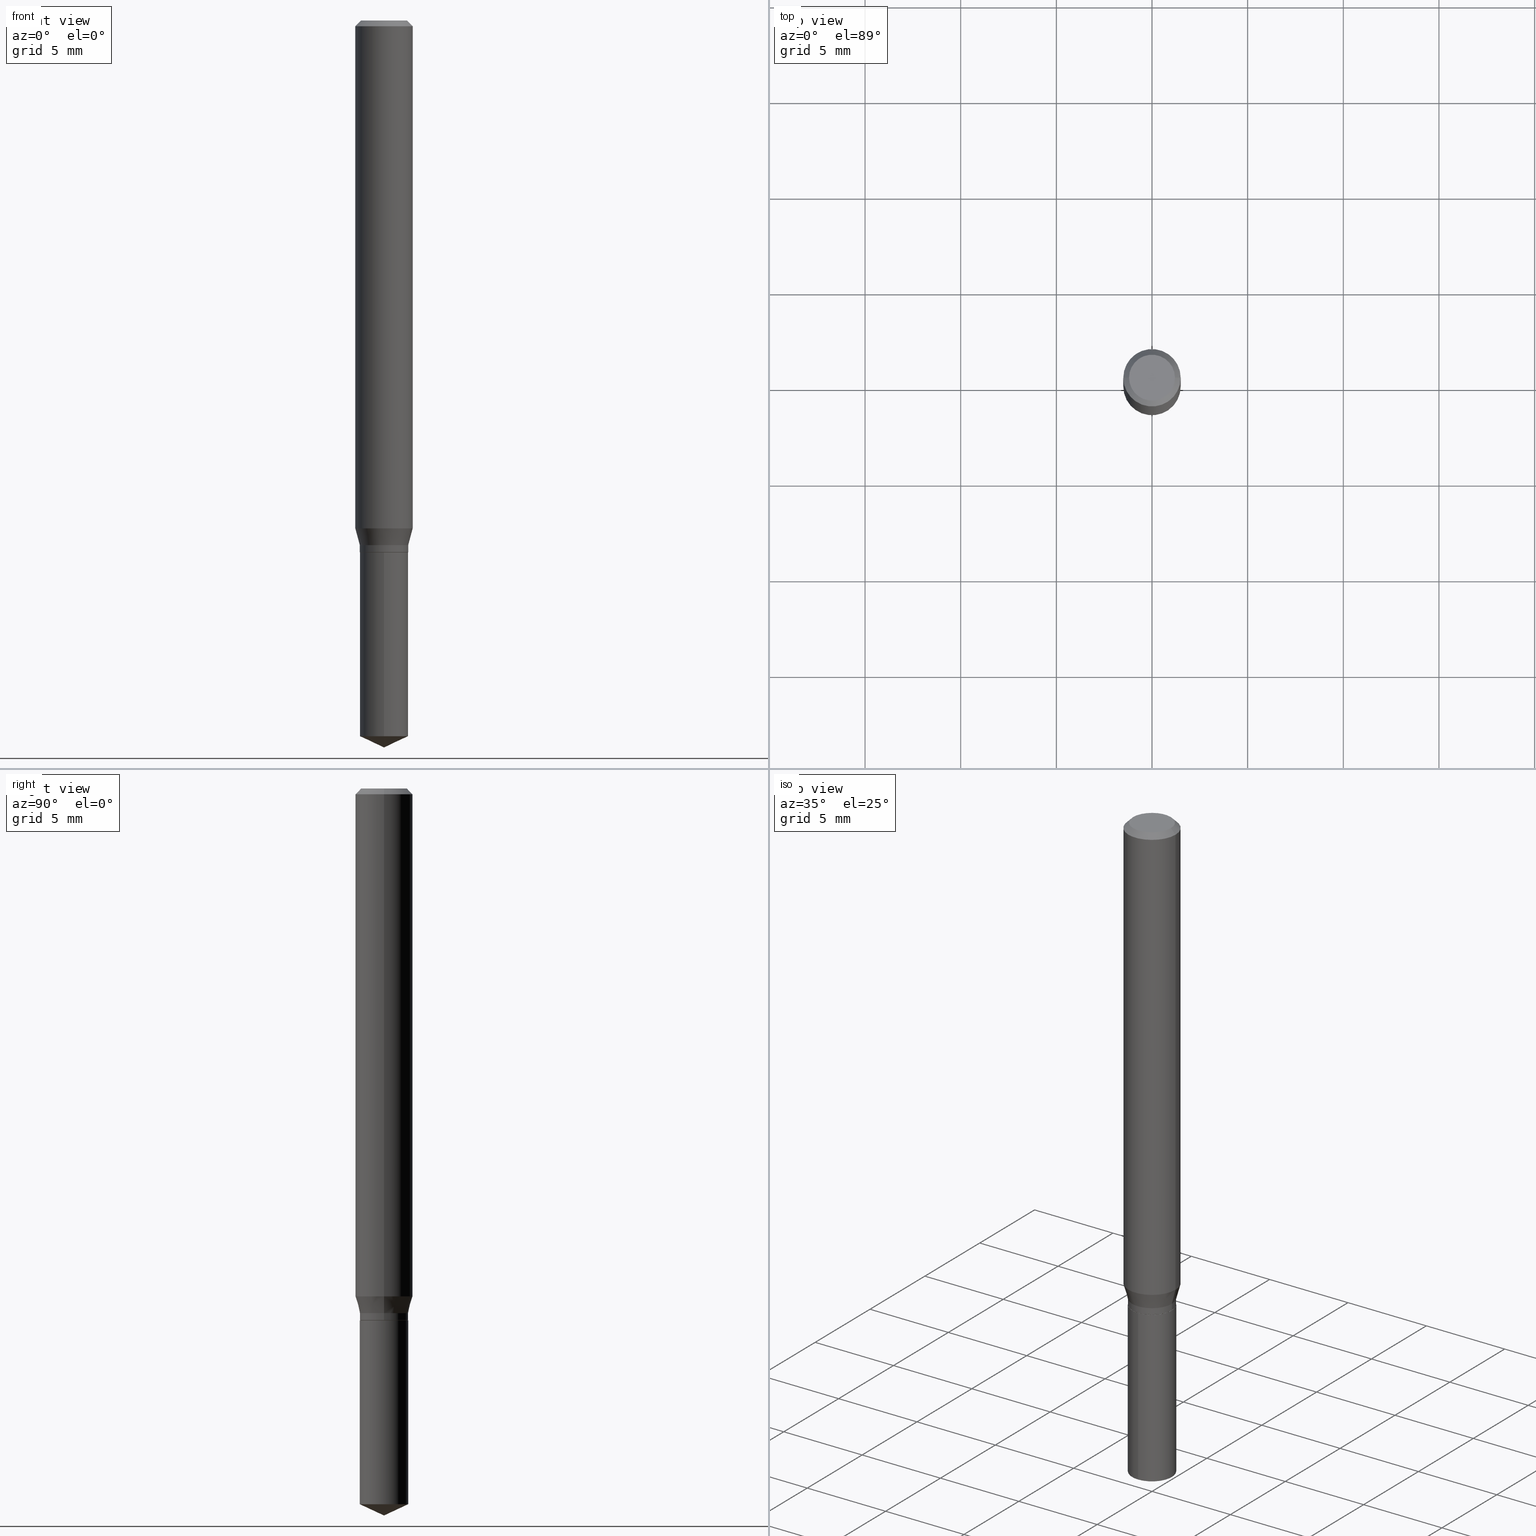
[diagram: canonical four-view strip — front | top / right | iso, engineering-drawing reading convention]
A machine part, canonical four-view strip (front | top / right | iso — engineering-drawing reading convention). The complete STEP part file that produces these views, byte-faithful:
ISO-10303-21;
HEADER;
FILE_DESCRIPTION (( 'STEP AP203' ),
    '1' );
FILE_NAME ('07664.STEP',
    '2024-04-24T00:38:05',
    ( '' ),
    ( '' ),
    'SwSTEP 2.0',
    'SolidWorks 2023',
    '' );
FILE_SCHEMA (( 'CONFIG_CONTROL_DESIGN' ));
ENDSEC;

DATA;
#1 = CARTESIAN_POINT ( 'NONE',  ( 0.05905000000000013016, -4.061216131342702061E-15, -1.045078530029987407 ) ) ;
#2 = CC_DESIGN_PERSON_AND_ORGANIZATION_ASSIGNMENT ( #77, #303, ( #391 ) ) ;
#3 = CALENDAR_DATE ( 2024, 23, 4 ) ;
#4 = ORIENTED_EDGE ( 'NONE', *, *, #364, .F. ) ;
#5 = AXIS2_PLACEMENT_3D ( 'NONE', #375, #452, #76 ) ;
#6 = AXIS2_PLACEMENT_3D ( 'NONE', #329, #473, #16 ) ;
#7 = SHAPE_DEFINITION_REPRESENTATION ( #155, #352 ) ;
#8 = DIRECTION ( 'NONE',  ( 2.445468806185136597E-29, -3.491481338843145583E-15, -1.000000000000000000 ) ) ;
#9 = ADVANCED_FACE ( 'NONE', ( #257 ), #486, .T. ) ;
#10 = CARTESIAN_POINT ( 'NONE',  ( 2.640128123157473261E-29, -3.769403253415059600E-15, -1.079599999999999893 ) ) ;
#11 = ADVANCED_FACE ( 'NONE', ( #43 ), #338, .F. ) ;
#12 = LINE ( 'NONE', #390, #30 ) ;
#13 = CONICAL_SURFACE ( 'NONE', #393, 0.04929999999999999660, 0.7853981633972775267 ) ;
#14 = CIRCLE ( 'NONE', #217, 0.05905000000000013016 ) ;
#15 = DIRECTION ( 'NONE',  ( -2.445458899330790108E-29, 3.491495526022433205E-15, 1.000000000000000000 ) ) ;
#16 = DIRECTION ( 'NONE',  ( 1.000000000000000000, -6.982962677686267499E-15, 4.876176775795935793E-29 ) ) ;
#17 = DIRECTION ( 'NONE',  ( -6.982962677686265922E-15, -1.000000000000000000, 2.742819270747252436E-15 ) ) ;
#18 = ORIENTED_EDGE ( 'NONE', *, *, #138, .F. ) ;
#19 = APPROVAL_STATUS ( 'not_yet_approved' ) ;
#20 = CLOSED_SHELL ( 'NONE', ( #484, #202, #119, #274, #69 ) ) ;
#21 = CARTESIAN_POINT ( 'NONE',  ( 2.676565608369631794E-29, -3.821426325363822773E-15, -1.094499999999999806 ) ) ;
#22 = AXIS2_PLACEMENT_3D ( 'NONE', #489, #342, #443 ) ;
#23 = ORIENTED_EDGE ( 'NONE', *, *, #186, .T. ) ;
#24 = ADVANCED_FACE ( 'NONE', ( #304 ), #54, .T. ) ;
#25 = CYLINDRICAL_SURFACE ( 'NONE', #6, 0.04979999999999999705 ) ;
#26 = VERTEX_POINT ( 'NONE', #1 ) ;
#27 = LINE ( 'NONE', #466, #395 ) ;
#28 = VERTEX_POINT ( 'NONE', #294 ) ;
#29 =( CONVERSION_BASED_UNIT ( 'INCH', #267 ) LENGTH_UNIT ( ) NAMED_UNIT ( #239 ) );
#30 = VECTOR ( 'NONE', #307, 39.37007874015748854 ) ;
#31 = EDGE_LOOP ( 'NONE', ( #172, #152, #477, #141 ) ) ;
#32 = AXIS2_PLACEMENT_3D ( 'NONE', #142, #439, #105 ) ;
#33 = CC_DESIGN_DATE_AND_TIME_ASSIGNMENT ( #111, #108, ( #391 ) ) ;
#34 = FACE_OUTER_BOUND ( 'NONE', #419, .T. ) ;
#35 = ORIENTED_EDGE ( 'NONE', *, *, #354, .F. ) ;
#36 = EDGE_CURVE ( 'NONE', #80, #215, #382, .T. ) ;
#37 = EDGE_LOOP ( 'NONE', ( #335, #247, #78, #99 ) ) ;
#38 = CARTESIAN_POINT ( 'NONE',  ( 2.675342873966538993E-29, -3.819680584694400481E-15, -1.093999999999999861 ) ) ;
#39 = LINE ( 'NONE', #187, #79 ) ;
#40 = AXIS2_PLACEMENT_3D ( 'NONE', #52, #425, #197 ) ;
#41 = CC_DESIGN_APPROVAL ( #360, ( #391 ) ) ;
#42 = DATE_AND_TIME ( #445, #488 ) ;
#43 = FACE_OUTER_BOUND ( 'NONE', #139, .T. ) ;
#44 = DATE_AND_TIME ( #399, #380 ) ;
#45 = DIRECTION ( 'NONE',  ( 1.000000000000000000, -6.982962677686265922E-15, 4.876176775795935793E-29 ) ) ;
#46 = FACE_OUTER_BOUND ( 'NONE', #37, .T. ) ;
#47 = AXIS2_PLACEMENT_3D ( 'NONE', #282, #209, #137 ) ;
#48 = APPROVAL_PERSON_ORGANIZATION ( #196, #164, #396 ) ;
#49 = CALENDAR_DATE ( 2024, 23, 4 ) ;
#50 = FACE_OUTER_BOUND ( 'NONE', #181, .T. ) ;
#51 = ADVANCED_FACE ( 'NONE', ( #264 ), #13, .T. ) ;
#52 = CARTESIAN_POINT ( 'NONE',  ( 2.676565608369632355E-29, -3.821426325363822773E-15, -1.094500000000000028 ) ) ;
#53 = DIRECTION ( 'NONE',  ( -2.445468806185136597E-29, 3.491481338843145583E-15, 1.000000000000000000 ) ) ;
#54 = CONICAL_SURFACE ( 'NONE', #216, 0.05904999999999999832, 0.7853981633974452814 ) ;
#55 = CIRCLE ( 'NONE', #63, 0.04724000000000000421 ) ;
#56 = CARTESIAN_POINT ( 'NONE',  ( 0.04979999999999999705, -4.167432126043176614E-15, -1.093999999999999861 ) ) ;
#57 = PRODUCT_RELATED_PRODUCT_CATEGORY ( 'detail', '', ( #400 ) ) ;
#58 = DIRECTION ( 'NONE',  ( -2.445468806185136597E-29, 3.491481338843145583E-15, 1.000000000000000000 ) ) ;
#59 = EDGE_LOOP ( 'NONE', ( #435, #65, #480 ) ) ;
#60 = DIRECTION ( 'NONE',  ( 1.000000000000000000, -6.982962677686266711E-15, 4.876185090822587894E-29 ) ) ;
#61 = ORIENTED_EDGE ( 'NONE', *, *, #308, .T. ) ;
#62 = DIRECTION ( 'NONE',  ( -2.445458899330790108E-29, 3.491495526022433205E-15, 1.000000000000000000 ) ) ;
#63 = AXIS2_PLACEMENT_3D ( 'NONE', #232, #384, #193 ) ;
#64 = SECURITY_CLASSIFICATION ( '', '', #318 ) ;
#65 = ORIENTED_EDGE ( 'NONE', *, *, #385, .T. ) ;
#66 = DIRECTION ( 'NONE',  ( -6.982962677686265922E-15, -1.000000000000000000, 5.485638541494504873E-15 ) ) ;
#67 = EDGE_LOOP ( 'NONE', ( #442, #143 ) ) ;
#68 = DIRECTION ( 'NONE',  ( -6.982962677686265922E-15, -1.000000000000000000, 5.485638541494504873E-15 ) ) ;
#69 = ADVANCED_FACE ( 'NONE', ( #72 ), #483, .F. ) ;
#70 = ORIENTED_EDGE ( 'NONE', *, *, #292, .F. ) ;
#71 = EDGE_CURVE ( 'NONE', #433, #215, #289, .T. ) ;
#72 = FACE_OUTER_BOUND ( 'NONE', #67, .T. ) ;
#73 = LINE ( 'NONE', #75, #297 ) ;
#74 = DIRECTION ( 'NONE',  ( 6.982962677686265922E-15, 1.000000000000000000, -3.491495526022433599E-15 ) ) ;
#75 = CARTESIAN_POINT ( 'NONE',  ( 0.04929999999999999660, -4.165686385373755899E-15, -1.094500000000000028 ) ) ;
#76 = DIRECTION ( 'NONE',  ( 1.000000000000000000, -6.982962677686267499E-15, 0.000000000000000000 ) ) ;
#77 = PERSON_AND_ORGANIZATION ( #97, #478 ) ;
#78 = ORIENTED_EDGE ( 'NONE', *, *, #451, .T. ) ;
#79 = VECTOR ( 'NONE', #341, 39.37007874015748143 ) ;
#80 = VERTEX_POINT ( 'NONE', #377 ) ;
#81 = PERSON_AND_ORGANIZATION_ROLE ( 'design_supplier' ) ;
#82 = DIRECTION ( 'NONE',  ( -1.000000000000000000, 6.982962677686265922E-15, -4.876176775795935793E-29 ) ) ;
#83 = EDGE_CURVE ( 'NONE', #249, #433, #39, .T. ) ;
#84 = DIRECTION ( 'NONE',  ( -2.445458899330790108E-29, 3.491495526022433205E-15, 1.000000000000000000 ) ) ;
#85 = AXIS2_PLACEMENT_3D ( 'NONE', #222, #147, #337 ) ;
#86 = CIRCLE ( 'NONE', #331, 0.04979999999999999705 ) ;
#87 = FACE_OUTER_BOUND ( 'NONE', #447, .T. ) ;
#88 = DIRECTION ( 'NONE',  ( -2.445468806185136597E-29, 3.491481338843145583E-15, 1.000000000000000000 ) ) ;
#89 = DIRECTION ( 'NONE',  ( 1.000000000000000000, -6.982962677686265133E-15, 0.000000000000000000 ) ) ;
#90 = PRODUCT_DEFINITION_FORMATION_WITH_SPECIFIED_SOURCE ( 'ANY', '', #400, .NOT_KNOWN. ) ;
#91 = LOCAL_TIME ( 20, 38, 5.000000000000000000, #231 ) ;
#92 = DIRECTION ( 'NONE',  ( -2.445468806185136877E-29, 3.491481338843145188E-15, 1.000000000000000000 ) ) ;
#93 = ORIENTED_EDGE ( 'NONE', *, *, #468, .F. ) ;
#94 = DATE_TIME_ROLE ( 'classification_date' ) ;
#95 = DIRECTION ( 'NONE',  ( -2.445468806185136877E-29, 3.491481338843145188E-15, 1.000000000000000000 ) ) ;
#96 = VERTEX_POINT ( 'NONE', #114 ) ;
#97 = PERSON ( 'UNSPECIFIED', 'UNSPECIFIED', 'UNSPECIFIED', ('UNSPECIFIED'), ('UNSPECIFIED'), ('UNSPECIFIED') ) ;
#98 = DIRECTION ( 'NONE',  ( -2.445468806185136597E-29, 3.491481338843145583E-15, 1.000000000000000000 ) ) ;
#99 = ORIENTED_EDGE ( 'NONE', *, *, #243, .F. ) ;
#100 = EDGE_CURVE ( 'NONE', #215, #96, #12, .T. ) ;
#101 = CONICAL_SURFACE ( 'NONE', #387, 84.42940631927513095, 1.134464013796319559 ) ;
#102 = LINE ( 'NONE', #242, #126 ) ;
#103 = AXIS2_PLACEMENT_3D ( 'NONE', #313, #424, #463 ) ;
#104 = EDGE_LOOP ( 'NONE', ( #177, #475, #398, #93 ) ) ;
#105 = DIRECTION ( 'NONE',  ( 1.000000000000000000, -6.982962677686267499E-15, 4.876176775795935793E-29 ) ) ;
#106 = ORIENTED_EDGE ( 'NONE', *, *, #427, .T. ) ;
#107 = ORIENTED_EDGE ( 'NONE', *, *, #256, .T. ) ;
#108 = DATE_TIME_ROLE ( 'creation_date' ) ;
#109 = ORIENTED_EDGE ( 'NONE', *, *, #474, .T. ) ;
#110 = AXIS2_PLACEMENT_3D ( 'NONE', #175, #290, #60 ) ;
#111 = DATE_AND_TIME ( #479, #179 ) ;
#112 = ORIENTED_EDGE ( 'NONE', *, *, #71, .F. ) ;
#113 = DIRECTION ( 'NONE',  ( 0.000000000000000000, 0.000000000000000000, 1.000000000000000000 ) ) ;
#114 = CARTESIAN_POINT ( 'NONE',  ( -0.05905000000000013016, -3.229296699758987253E-15, -1.045078530029987407 ) ) ;
#115 = DIRECTION ( 'NONE',  ( -6.982962677686265922E-15, -1.000000000000000000, 2.742819270747252436E-15 ) ) ;
#116 = ORIENTED_EDGE ( 'NONE', *, *, #36, .T. ) ;
#117 = VECTOR ( 'NONE', #128, 39.37007874015748143 ) ;
#118 = AXIS2_PLACEMENT_3D ( 'NONE', #441, #376, #224 ) ;
#119 = ADVANCED_FACE ( 'NONE', ( #50 ), #178, .T. ) ;
#120 = CARTESIAN_POINT ( 'NONE',  ( -9.261924752013118283E-28, 1.322368428517963298E-13, 37.87397874015748300 ) ) ;
#121 = DATE_AND_TIME ( #49, #134 ) ;
#122 = EDGE_CURVE ( 'NONE', #136, #369, #370, .T. ) ;
#123 = FACE_OUTER_BOUND ( 'NONE', #320, .T. ) ;
#124 = LINE ( 'NONE', #154, #346 ) ;
#125 = CIRCLE ( 'NONE', #432, 0.04929999999999999660 ) ;
#126 = VECTOR ( 'NONE', #165, 39.37007874015748854 ) ;
#127 = UNCERTAINTY_MEASURE_WITH_UNIT (LENGTH_MEASURE( 1.000000000000000082E-05 ), #29, 'distance_accuracy_value', 'NONE');
#128 = DIRECTION ( 'NONE',  ( -0.7071067811864267805, 7.493145998869918709E-15, 0.7071067811866682540 ) ) ;
#129 = CC_DESIGN_PERSON_AND_ORGANIZATION_ASSIGNMENT ( #458, #81, ( #90 ) ) ;
#130 = CARTESIAN_POINT ( 'NONE',  ( 2.888098660104663328E-31, -4.123439461173779030E-17, -0.01181000000000006871 ) ) ;
#131 = LINE ( 'NONE', #431, #347 ) ;
#132 = AXIS2_PLACEMENT_3D ( 'NONE', #287, #361, #319 ) ;
#133 = EDGE_CURVE ( 'NONE', #369, #136, #386, .T. ) ;
#134 = LOCAL_TIME ( 20, 38, 5.000000000000000000, #309 ) ;
#135 = CARTESIAN_POINT ( 'NONE',  ( 3.658651059288794515E-29, -5.223626456482161457E-15, -1.496099999999999985 ) ) ;
#136 = VERTEX_POINT ( 'NONE', #464 ) ;
#137 = DIRECTION ( 'NONE',  ( 1.000000000000000000, -6.982962677686267499E-15, 0.000000000000000000 ) ) ;
#138 = EDGE_CURVE ( 'NONE', #343, #80, #459, .T. ) ;
#139 = EDGE_LOOP ( 'NONE', ( #455, #254 ) ) ;
#140 = CYLINDRICAL_SURFACE ( 'NONE', #332, 0.04979999999999999705 ) ;
#141 = ORIENTED_EDGE ( 'NONE', *, *, #133, .F. ) ;
#142 = CARTESIAN_POINT ( 'NONE',  ( 0.000000000000000000, 0.000000000000000000, 0.000000000000000000 ) ) ;
#143 = ORIENTED_EDGE ( 'NONE', *, *, #133, .T. ) ;
#144 = APPROVAL ( #349, 'UNSPECIFIED' ) ;
#145 = CARTESIAN_POINT ( 'NONE',  ( -0.04724000000000000421, 3.504923541997677355E-16, -3.380025165670481712E-19 ) ) ;
#146 = ORIENTED_EDGE ( 'NONE', *, *, #451, .F. ) ;
#147 = DIRECTION ( 'NONE',  ( -2.445468806185136597E-29, 3.491481338843145583E-15, 1.000000000000000000 ) ) ;
#148 = DIRECTION ( 'NONE',  ( 1.000000000000000000, 0.000000000000000000, 0.000000000000000000 ) ) ;
#149 = CC_DESIGN_PERSON_AND_ORGANIZATION_ASSIGNMENT ( #357, #436, ( #64 ) ) ;
#150 = CONICAL_SURFACE ( 'NONE', #40, 0.04929999999999999660, 0.7853981633972775267 ) ;
#151 = ORIENTED_EDGE ( 'NONE', *, *, #157, .F. ) ;
#152 = ORIENTED_EDGE ( 'NONE', *, *, #364, .T. ) ;
#153 = ORIENTED_EDGE ( 'NONE', *, *, #100, .T. ) ;
#154 = CARTESIAN_POINT ( 'NONE',  ( -0.05904999999999999832, 3.711095515056362547E-16, -0.01181000000000006871 ) ) ;
#155 = PRODUCT_DEFINITION_SHAPE ( 'NONE', 'NONE',  #391 ) ;
#156 = VECTOR ( 'NONE', #248, 39.37007874015748143 ) ;
#157 = EDGE_CURVE ( 'NONE', #28, #326, #159, .T. ) ;
#158 = DIRECTION ( 'NONE',  ( 0.7071067811865453523, -7.319954787623248157E-15, -0.7071067811865496822 ) ) ;
#159 = LINE ( 'NONE', #237, #406 ) ;
#160 = DIRECTION ( 'NONE',  ( 1.000000000000000000, -6.982962677686266711E-15, 0.000000000000000000 ) ) ;
#161 = ADVANCED_FACE ( 'NONE', ( #87 ), #430, .T. ) ;
#162 = CARTESIAN_POINT ( 'NONE',  ( 2.555706945202150538E-29, -3.648872185225327141E-15, -1.045078530029987407 ) ) ;
#163 = CARTESIAN_POINT ( 'NONE',  ( 2.555706945202150538E-29, -3.648872185225327141E-15, -1.045078530029987407 ) ) ;
#164 = APPROVAL ( #19, 'UNSPECIFIED' ) ;
#165 = DIRECTION ( 'NONE',  ( 6.439704144417039031E-15, 0.9063077870366536004, 0.4226182617406913367 ) ) ;
#166 = ORIENTED_EDGE ( 'NONE', *, *, #71, .T. ) ;
#167 = PERSON_AND_ORGANIZATION ( #97, #478 ) ;
#168 = AXIS2_PLACEMENT_3D ( 'NONE', #296, #415, #74 ) ;
#169 = ADVANCED_FACE ( 'NONE', ( #460 ), #150, .T. ) ;
#170 = CONICAL_SURFACE ( 'NONE', #314, 0.04979999999999999705, 0.2617993877991499629 ) ;
#171 = CARTESIAN_POINT ( 'NONE',  ( -3.477515413487399930E-16, -0.04980000000000512489, -1.472877878623880976 ) ) ;
#172 = ORIENTED_EDGE ( 'NONE', *, *, #336, .F. ) ;
#173 = DIRECTION ( 'NONE',  ( -2.445458899330790108E-29, 3.491495526022433599E-15, 1.000000000000000000 ) ) ;
#174 = ORIENTED_EDGE ( 'NONE', *, *, #468, .T. ) ;
#175 = CARTESIAN_POINT ( 'NONE',  ( 8.265746106709734507E-48, -1.180129479067563789E-33, -3.380025165646692144E-19 ) ) ;
#176 = CC_DESIGN_DATE_AND_TIME_ASSIGNMENT ( #323, #94, ( #64 ) ) ;
#177 = ORIENTED_EDGE ( 'NONE', *, *, #308, .F. ) ;
#178 = CONICAL_SURFACE ( 'NONE', #273, 84.42940631927513095, 1.134464013796319559 ) ;
#179 = LOCAL_TIME ( 20, 38, 5.000000000000000000, #421 ) ;
#180 = APPROVAL_ROLE ( '' ) ;
#181 = EDGE_LOOP ( 'NONE', ( #291, #230, #4 ) ) ;
#182 = CARTESIAN_POINT ( 'NONE',  ( 2.676565608369631794E-29, -3.821426325363822773E-15, -1.094499999999999806 ) ) ;
#183 = DIRECTION ( 'NONE',  ( -1.000000000000000000, 6.982962677686266711E-15, 0.000000000000000000 ) ) ;
#184 =( LENGTH_UNIT ( ) NAMED_UNIT ( * ) SI_UNIT ( $, .METRE. ) );
#185 = DIRECTION ( 'NONE',  ( -2.438088387897960049E-29, 3.491481338843145188E-15, 1.000000000000000000 ) ) ;
#186 = EDGE_CURVE ( 'NONE', #470, #218, #124, .T. ) ;
#187 = CARTESIAN_POINT ( 'NONE',  ( 0.04979999999999999705, -3.477515413487760834E-16, 2.428336034346375865E-30 ) ) ;
#188 = CIRCLE ( 'NONE', #281, 0.05905000000000013016 ) ;
#189 = DIRECTION ( 'NONE',  ( 1.000000000000000000, -6.982962677686267499E-15, 0.000000000000000000 ) ) ;
#190 = DIRECTION ( 'NONE',  ( 2.445468806185136597E-29, -3.491481338843145583E-15, -1.000000000000000000 ) ) ;
#191 = EDGE_LOOP ( 'NONE', ( #18, #328, #204, #344 ) ) ;
#192 = APPROVAL_DATE_TIME ( #121, #144 ) ;
#193 = DIRECTION ( 'NONE',  ( 1.000000000000000000, -6.982962677686266711E-15, 4.876185090822587894E-29 ) ) ;
#194 = CIRCLE ( 'NONE', #22, 0.05904999999999999832 ) ;
#195 = APPLICATION_CONTEXT ( 'configuration controlled 3d designs of mechanical parts and assemblies' ) ;
#196 = PERSON_AND_ORGANIZATION ( #97, #478 ) ;
#197 = DIRECTION ( 'NONE',  ( 1.000000000000000000, -6.982962677686266711E-15, 0.000000000000000000 ) ) ;
#198 = DIRECTION ( 'NONE',  ( -6.982962677686268288E-15, -1.000000000000000000, 3.520397390770420738E-15 ) ) ;
#199 = DIRECTION ( 'NONE',  ( -2.445458899330790108E-29, 3.491495526022433205E-15, 1.000000000000000000 ) ) ;
#200 = VECTOR ( 'NONE', #173, 39.37007874015748143 ) ;
#201 = DIRECTION ( 'NONE',  ( -1.000000000000000000, 6.982962677686266711E-15, 0.000000000000000000 ) ) ;
#202 = ADVANCED_FACE ( 'NONE', ( #350 ), #101, .T. ) ;
#203 = DIRECTION ( 'NONE',  ( 1.000000000000000000, -6.982962677686266711E-15, 4.876176775795936353E-29 ) ) ;
#204 = ORIENTED_EDGE ( 'NONE', *, *, #465, .T. ) ;
#205 = EDGE_CURVE ( 'NONE', #330, #343, #125, .T. ) ;
#206 = LINE ( 'NONE', #408, #306 ) ;
#207 = EDGE_LOOP ( 'NONE', ( #166, #153, #35, #146 ) ) ;
#208 = AXIS2_PLACEMENT_3D ( 'NONE', #301, #113, #148 ) ;
#209 = DIRECTION ( 'NONE',  ( -2.445468806185136597E-29, 3.491481338843145583E-15, 1.000000000000000000 ) ) ;
#210 = EDGE_LOOP ( 'NONE', ( #440, #381, #252, #359 ) ) ;
#211 = ADVANCED_FACE ( 'NONE', ( #356 ), #228, .T. ) ;
#212 = CARTESIAN_POINT ( 'NONE',  ( 0.04979999999999999705, -4.117154794763835733E-15, -1.079599999999999893 ) ) ;
#213 = ORIENTED_EDGE ( 'NONE', *, *, #186, .F. ) ;
#214 = FACE_OUTER_BOUND ( 'NONE', #366, .T. ) ;
#215 = VERTEX_POINT ( 'NONE', #270 ) ;
#216 = AXIS2_PLACEMENT_3D ( 'NONE', #225, #190, #183 ) ;
#217 = AXIS2_PLACEMENT_3D ( 'NONE', #162, #315, #89 ) ;
#218 = VERTEX_POINT ( 'NONE', #388 ) ;
#219 = ADVANCED_FACE ( 'NONE', ( #46 ), #170, .T. ) ;
#220 = APPLICATION_CONTEXT ( 'configuration controlled 3d designs of mechanical parts and assemblies' ) ;
#221 = DIRECTION ( 'NONE',  ( 0.2588190451025212391, 1.565188264969622362E-15, 0.9659258262890679791 ) ) ;
#222 = CARTESIAN_POINT ( 'NONE',  ( 0.000000000000000000, 0.000000000000000000, 0.000000000000000000 ) ) ;
#223 = EDGE_CURVE ( 'NONE', #249, #80, #371, .T. ) ;
#224 = DIRECTION ( 'NONE',  ( 1.000000000000000000, -6.982962677686266711E-15, 0.000000000000000000 ) ) ;
#225 = CARTESIAN_POINT ( 'NONE',  ( 2.888098660104663328E-31, -4.123439461173779030E-17, -0.01181000000000006871 ) ) ;
#226 = DIRECTION ( 'NONE',  ( -2.445468806185136597E-29, 3.491481338843145583E-15, 1.000000000000000000 ) ) ;
#227 = ORIENTED_EDGE ( 'NONE', *, *, #403, .T. ) ;
#228 = CONICAL_SURFACE ( 'NONE', #241, 0.04979999999999999705, 0.2617993877991499629 ) ;
#229 = APPROVAL_DATE_TIME ( #44, #164 ) ;
#230 = ORIENTED_EDGE ( 'NONE', *, *, #423, .T. ) ;
#231 = COORDINATED_UNIVERSAL_TIME_OFFSET ( 5, 0, .BEHIND. ) ;
#232 = CARTESIAN_POINT ( 'NONE',  ( 8.265746106709734507E-48, -1.180129479067563789E-33, -3.380025165646692144E-19 ) ) ;
#233 = DIRECTION ( 'NONE',  ( -6.982962677686268288E-15, -1.000000000000000000, 3.520397390770420738E-15 ) ) ;
#234 = CIRCLE ( 'NONE', #462, 0.04979999999999999705 ) ;
#235 = ADVANCED_FACE ( 'NONE', ( #312 ), #272, .F. ) ;
#236 = PERSON_AND_ORGANIZATION_ROLE ( 'creator' ) ;
#237 = CARTESIAN_POINT ( 'NONE',  ( 0.05904999999999999832, -4.463468013801466955E-16, -0.01181000000000006871 ) ) ;
#238 = CARTESIAN_POINT ( 'NONE',  ( 4.132873053354867254E-48, -5.900647395337818946E-34, -1.690012582823346072E-19 ) ) ;
#239 = DIMENSIONAL_EXPONENTS ( 1.000000000000000000, 0.000000000000000000, 0.000000000000000000, 0.000000000000000000, 0.000000000000000000, 0.000000000000000000, 0.000000000000000000 ) ;
#240 = CARTESIAN_POINT ( 'NONE',  ( -0.04929999999999999660, -3.471128756634093702E-15, -1.094500000000000028 ) ) ;
#241 = AXIS2_PLACEMENT_3D ( 'NONE', #278, #88, #394 ) ;
#242 = CARTESIAN_POINT ( 'NONE',  ( 3.658672935554494692E-29, -5.223595400746700193E-15, -1.496099999999999985 ) ) ;
#243 = EDGE_CURVE ( 'NONE', #96, #26, #14, .T. ) ;
#244 = ORIENTED_EDGE ( 'NONE', *, *, #354, .T. ) ;
#245 = COORDINATED_UNIVERSAL_TIME_OFFSET ( 5, 0, .BEHIND. ) ;
#246 = FACE_OUTER_BOUND ( 'NONE', #288, .T. ) ;
#247 = ORIENTED_EDGE ( 'NONE', *, *, #292, .T. ) ;
#248 = DIRECTION ( 'NONE',  ( -2.445458899330790108E-29, 3.491495526022433599E-15, 1.000000000000000000 ) ) ;
#249 = VERTEX_POINT ( 'NONE', #56 ) ;
#250 = AXIS2_PLACEMENT_3D ( 'NONE', #397, #62, #68 ) ;
#251 = FACE_OUTER_BOUND ( 'NONE', #31, .T. ) ;
#252 = ORIENTED_EDGE ( 'NONE', *, *, #223, .F. ) ;
#253 = CARTESIAN_POINT ( 'NONE',  ( 3.538502824085657648E-16, 0.04979999999999484839, -1.472877878623881642 ) ) ;
#254 = ORIENTED_EDGE ( 'NONE', *, *, #446, .F. ) ;
#255 =( NAMED_UNIT ( * ) SI_UNIT ( $, .STERADIAN. ) SOLID_ANGLE_UNIT ( ) );
#256 = EDGE_CURVE ( 'NONE', #28, #470, #55, .T. ) ;
#257 = FACE_OUTER_BOUND ( 'NONE', #104, .T. ) ;
#258 = AXIS2_PLACEMENT_3D ( 'NONE', #262, #185, #45 ) ;
#259 = CIRCLE ( 'NONE', #47, 0.04979999999999999705 ) ;
#260 = DIRECTION ( 'NONE',  ( -2.445458899330790108E-29, 3.491495526022433205E-15, 1.000000000000000000 ) ) ;
#261 = ADVANCED_FACE ( 'NONE', ( #123 ), #434, .T. ) ;
#262 = CARTESIAN_POINT ( 'NONE',  ( 5.590086428765449529E-30, -6.853888423807571382E-15, -1.094500000000000028 ) ) ;
#263 = MECHANICAL_CONTEXT ( 'NONE', #195, 'mechanical' ) ;
#264 = FACE_OUTER_BOUND ( 'NONE', #210, .T. ) ;
#265 = PERSON_AND_ORGANIZATION_ROLE ( 'design_owner' ) ;
#266 = VERTEX_POINT ( 'NONE', #171 ) ;
#267 = LENGTH_MEASURE_WITH_UNIT ( LENGTH_MEASURE( 0.02539999999999999897 ), #184 );
#268 = ORIENTED_EDGE ( 'NONE', *, *, #256, .F. ) ;
#269 = APPROVAL_PERSON_ORGANIZATION ( #372, #360, #180 ) ;
#270 = CARTESIAN_POINT ( 'NONE',  ( -0.04979999999999999705, -3.440691636646200465E-15, -1.079599999999999893 ) ) ;
#271 = DIRECTION ( 'NONE',  ( -6.982962677686265922E-15, -1.000000000000000000, 2.742819270747252436E-15 ) ) ;
#272 = PLANE ( 'NONE',  #275 ) ;
#273 = AXIS2_PLACEMENT_3D ( 'NONE', #120, #84, #233 ) ;
#274 = ADVANCED_FACE ( 'NONE', ( #251 ), #140, .T. ) ;
#275 = AXIS2_PLACEMENT_3D ( 'NONE', #238, #392, #82 ) ;
#276 = DIRECTION ( 'NONE',  ( -2.445458899330790108E-29, 3.491495526022433205E-15, 1.000000000000000000 ) ) ;
#277 = DESIGN_CONTEXT ( 'detailed design', #220, 'design' ) ;
#278 = CARTESIAN_POINT ( 'NONE',  ( 2.640128123157473261E-29, -3.769403253415059600E-15, -1.079599999999999893 ) ) ;
#279 = CC_DESIGN_PERSON_AND_ORGANIZATION_ASSIGNMENT ( #334, #265, ( #400 ) ) ;
#280 = CARTESIAN_POINT ( 'NONE',  ( -3.477515413487492621E-16, -0.04980000000000382038, -1.094499999999999806 ) ) ;
#281 = AXIS2_PLACEMENT_3D ( 'NONE', #163, #98, #325 ) ;
#282 = CARTESIAN_POINT ( 'NONE',  ( 2.640128123157473261E-29, -3.769403253415059600E-15, -1.079599999999999893 ) ) ;
#283 = ORIENTED_EDGE ( 'NONE', *, *, #83, .F. ) ;
#284 = APPROVAL_ROLE ( '' ) ;
#285 = DIRECTION ( 'NONE',  ( -2.445458899330790108E-29, 3.491495526022433205E-15, 1.000000000000000000 ) ) ;
#286 = ORIENTED_EDGE ( 'NONE', *, *, #410, .T. ) ;
#287 = CARTESIAN_POINT ( 'NONE',  ( 2.888098660104663328E-31, -4.123439461173779030E-17, -0.01181000000000006871 ) ) ;
#288 = EDGE_LOOP ( 'NONE', ( #472, #116, #112, #283 ) ) ;
#289 = CIRCLE ( 'NONE', #5, 0.04979999999999999705 ) ;
#290 = DIRECTION ( 'NONE',  ( -2.445468806185136597E-29, 3.491481338843145583E-15, 1.000000000000000000 ) ) ;
#291 = ORIENTED_EDGE ( 'NONE', *, *, #385, .F. ) ;
#292 = EDGE_CURVE ( 'NONE', #215, #433, #259, .T. ) ;
#293 = LINE ( 'NONE', #379, #378 ) ;
#294 = CARTESIAN_POINT ( 'NONE',  ( 0.04724000000000000421, -3.852183633974369345E-16, -3.380025165621689721E-19 ) ) ;
#295 = ADVANCED_FACE ( 'NONE', ( #214 ), #367, .T. ) ;
#296 = CARTESIAN_POINT ( 'NONE',  ( 2.676565608369631794E-29, -3.821426325363822773E-15, -1.094499999999999806 ) ) ;
#297 = VECTOR ( 'NONE', #374, 39.37007874015748143 ) ;
#298 = APPROVAL_STATUS ( 'not_yet_approved' ) ;
#299 = VERTEX_POINT ( 'NONE', #253 ) ;
#300 = MANIFOLD_SOLID_BREP ( 'Body-Move/Copy2[2]', #487 ) ;
#301 = CARTESIAN_POINT ( 'NONE',  ( 0.000000000000000000, 0.000000000000000000, 0.000000000000000000 ) ) ;
#302 = DIRECTION ( 'NONE',  ( -2.445468806185136597E-29, 3.491481338843145583E-15, 1.000000000000000000 ) ) ;
#303 = PERSON_AND_ORGANIZATION_ROLE ( 'creator' ) ;
#304 = FACE_OUTER_BOUND ( 'NONE', #422, .T. ) ;
#305 = VECTOR ( 'NONE', #444, 39.37007874015748143 ) ;
#306 = VECTOR ( 'NONE', #404, 39.37007874015748854 ) ;
#307 = DIRECTION ( 'NONE',  ( -0.2588190451025212391, 5.211531920934549464E-15, 0.9659258262890679791 ) ) ;
#308 = EDGE_CURVE ( 'NONE', #96, #218, #27, .T. ) ;
#309 = COORDINATED_UNIVERSAL_TIME_OFFSET ( 5, 0, .BEHIND. ) ;
#310 = CARTESIAN_POINT ( 'NONE',  ( -9.261924752013118283E-28, 1.322368428517963298E-13, 37.87397874015748300 ) ) ;
#311 = EDGE_CURVE ( 'NONE', #266, #136, #469, .T. ) ;
#312 = FACE_OUTER_BOUND ( 'NONE', #402, .T. ) ;
#313 = CARTESIAN_POINT ( 'NONE',  ( 2.675342873966538993E-29, -3.819680584694400481E-15, -1.093999999999999861 ) ) ;
#314 = AXIS2_PLACEMENT_3D ( 'NONE', #10, #53, #429 ) ;
#315 = DIRECTION ( 'NONE',  ( -2.445468806185136597E-29, 3.491481338843145583E-15, 1.000000000000000000 ) ) ;
#316 = DIRECTION ( 'NONE',  ( -2.445458899330790108E-29, 3.491495526022433205E-15, 1.000000000000000000 ) ) ;
#317 = ORIENTED_EDGE ( 'NONE', *, *, #336, .T. ) ;
#318 = SECURITY_CLASSIFICATION_LEVEL ( 'unclassified' ) ;
#319 = DIRECTION ( 'NONE',  ( 1.000000000000000000, -6.982962677686266711E-15, 0.000000000000000000 ) ) ;
#320 = EDGE_LOOP ( 'NONE', ( #244, #61, #467, #438 ) ) ;
#321 = AXIS2_PLACEMENT_3D ( 'NONE', #457, #276, #271 ) ;
#322 = CIRCLE ( 'NONE', #250, 0.04979999999999999705 ) ;
#323 = DATE_AND_TIME ( #3, #91 ) ;
#324 = ADVANCED_FACE ( 'NONE', ( #246 ), #25, .T. ) ;
#325 = DIRECTION ( 'NONE',  ( 1.000000000000000000, -6.982962677686265133E-15, 0.000000000000000000 ) ) ;
#326 = VERTEX_POINT ( 'NONE', #327 ) ;
#327 = CARTESIAN_POINT ( 'NONE',  ( 0.05904999999999999832, -4.535783407291118600E-16, -0.01181000000000006871 ) ) ;
#328 = ORIENTED_EDGE ( 'NONE', *, *, #446, .T. ) ;
#329 = CARTESIAN_POINT ( 'NONE',  ( 0.000000000000000000, 0.000000000000000000, 0.000000000000000000 ) ) ;
#330 = VERTEX_POINT ( 'NONE', #401 ) ;
#331 = AXIS2_PLACEMENT_3D ( 'NONE', #38, #226, #189 ) ;
#332 = AXIS2_PLACEMENT_3D ( 'NONE', #21, #316, #17 ) ;
#333 = CC_DESIGN_APPROVAL ( #144, ( #90 ) ) ;
#334 = PERSON_AND_ORGANIZATION ( #97, #478 ) ;
#335 = ORIENTED_EDGE ( 'NONE', *, *, #100, .F. ) ;
#336 = EDGE_CURVE ( 'NONE', #299, #369, #476, .T. ) ;
#337 = DIRECTION ( 'NONE',  ( 1.000000000000000000, -6.982962677686266711E-15, 4.876176775795936353E-29 ) ) ;
#338 = PLANE ( 'NONE',  #258 ) ;
#339 = AXIS2_PLACEMENT_3D ( 'NONE', #358, #58, #203 ) ;
#340 = CC_DESIGN_SECURITY_CLASSIFICATION ( #64, ( #90 ) ) ;
#341 = DIRECTION ( 'NONE',  ( -2.445468806185136877E-29, 3.491481338843145188E-15, 1.000000000000000000 ) ) ;
#342 = DIRECTION ( 'NONE',  ( -2.445468806185136597E-29, 3.491481338843145583E-15, 1.000000000000000000 ) ) ;
#343 = VERTEX_POINT ( 'NONE', #365 ) ;
#344 = ORIENTED_EDGE ( 'NONE', *, *, #474, .F. ) ;
#345 = CC_DESIGN_PERSON_AND_ORGANIZATION_ASSIGNMENT ( #167, #236, ( #90 ) ) ;
#346 = VECTOR ( 'NONE', #428, 39.37007874015748143 ) ;
#347 = VECTOR ( 'NONE', #92, 39.37007874015748143 ) ;
#348 = CARTESIAN_POINT ( 'NONE',  ( 2.676565608369631794E-29, -3.821426325363822773E-15, -1.094499999999999806 ) ) ;
#349 = APPROVAL_STATUS ( 'not_yet_approved' ) ;
#350 = FACE_OUTER_BOUND ( 'NONE', #59, .T. ) ;
#351 = DIRECTION ( 'NONE',  ( -2.445468806185136597E-29, 3.491481338843145583E-15, 1.000000000000000000 ) ) ;
#352 = ADVANCED_BREP_SHAPE_REPRESENTATION ( '07664', ( #481, #300, #208 ), #420 ) ;
#353 = CARTESIAN_POINT ( 'NONE',  ( 2.676565608369632355E-29, -3.821426325363822773E-15, -1.094500000000000028 ) ) ;
#354 = EDGE_CURVE ( 'NONE', #26, #96, #188, .T. ) ;
#355 = CIRCLE ( 'NONE', #118, 0.04929999999999999660 ) ;
#356 = FACE_OUTER_BOUND ( 'NONE', #207, .T. ) ;
#357 = PERSON_AND_ORGANIZATION ( #97, #478 ) ;
#358 = CARTESIAN_POINT ( 'NONE',  ( 0.000000000000000000, 0.000000000000000000, 0.000000000000000000 ) ) ;
#359 = ORIENTED_EDGE ( 'NONE', *, *, #465, .F. ) ;
#360 = APPROVAL ( #298, 'UNSPECIFIED' ) ;
#361 = DIRECTION ( 'NONE',  ( -2.445468806185136597E-29, 3.491481338843145583E-15, 1.000000000000000000 ) ) ;
#362 = ORIENTED_EDGE ( 'NONE', *, *, #36, .F. ) ;
#363 = AXIS2_PLACEMENT_3D ( 'NONE', #182, #260, #115 ) ;
#364 = EDGE_CURVE ( 'NONE', #299, #266, #322, .T. ) ;
#365 = CARTESIAN_POINT ( 'NONE',  ( -0.04929999999999999660, -3.468479529459982106E-15, -1.094500000000000028 ) ) ;
#366 = EDGE_LOOP ( 'NONE', ( #362, #109, #373, #70 ) ) ;
#367 = CYLINDRICAL_SURFACE ( 'NONE', #32, 0.04979999999999999705 ) ;
#368 = ORIENTED_EDGE ( 'NONE', *, *, #410, .F. ) ;
#369 = VERTEX_POINT ( 'NONE', #437 ) ;
#370 = CIRCLE ( 'NONE', #321, 0.04979999999999999705 ) ;
#371 = CIRCLE ( 'NONE', #103, 0.04979999999999999705 ) ;
#372 = PERSON_AND_ORGANIZATION ( #97, #478 ) ;
#373 = ORIENTED_EDGE ( 'NONE', *, *, #83, .T. ) ;
#374 = DIRECTION ( 'NONE',  ( 0.7071067811864267805, -2.468850131080992517E-15, 0.7071067811866682540 ) ) ;
#375 = CARTESIAN_POINT ( 'NONE',  ( 2.640128123157473261E-29, -3.769403253415059600E-15, -1.079599999999999893 ) ) ;
#376 = DIRECTION ( 'NONE',  ( -2.445468806185136597E-29, 3.491481338843145583E-15, 1.000000000000000000 ) ) ;
#377 = CARTESIAN_POINT ( 'NONE',  ( -0.04979999999999999705, -3.440691636646200465E-15, -1.093999999999999861 ) ) ;
#378 = VECTOR ( 'NONE', #221, 39.37007874015748854 ) ;
#379 = CARTESIAN_POINT ( 'NONE',  ( 0.04979999999999999705, -4.117154794763835733E-15, -1.079599999999999893 ) ) ;
#380 = LOCAL_TIME ( 20, 38, 5.000000000000000000, #245 ) ;
#381 = ORIENTED_EDGE ( 'NONE', *, *, #138, .T. ) ;
#382 = LINE ( 'NONE', #417, #305 ) ;
#383 = EDGE_CURVE ( 'NONE', #26, #326, #131, .T. ) ;
#384 = DIRECTION ( 'NONE',  ( -2.445468806185136597E-29, 3.491481338843145583E-15, 1.000000000000000000 ) ) ;
#385 = EDGE_CURVE ( 'NONE', #409, #299, #102, .T. ) ;
#386 = CIRCLE ( 'NONE', #448, 0.04979999999999999705 ) ;
#387 = AXIS2_PLACEMENT_3D ( 'NONE', #310, #199, #198 ) ;
#388 = CARTESIAN_POINT ( 'NONE',  ( -0.05904999999999999832, -1.425477804452191956E-15, -0.01181000000000006871 ) ) ;
#389 = APPROVAL_PERSON_ORGANIZATION ( #416, #144, #284 ) ;
#390 = CARTESIAN_POINT ( 'NONE',  ( -0.04979999999999999705, -3.415552971006530025E-15, -1.079599999999999893 ) ) ;
#391 = PRODUCT_DEFINITION ( 'UNKNOWN', '', #90, #277 ) ;
#392 = DIRECTION ( 'NONE',  ( 2.438088387897960049E-29, -3.491481338843145188E-15, -1.000000000000000000 ) ) ;
#393 = AXIS2_PLACEMENT_3D ( 'NONE', #413, #302, #453 ) ;
#394 = DIRECTION ( 'NONE',  ( 1.000000000000000000, -6.982962677686267499E-15, 0.000000000000000000 ) ) ;
#395 = VECTOR ( 'NONE', #95, 39.37007874015748143 ) ;
#396 = APPROVAL_ROLE ( '' ) ;
#397 = CARTESIAN_POINT ( 'NONE',  ( 3.601873158960308379E-29, -5.142530995724963352E-15, -1.472877878623881420 ) ) ;
#398 = ORIENTED_EDGE ( 'NONE', *, *, #383, .T. ) ;
#399 = CALENDAR_DATE ( 2024, 23, 4 ) ;
#400 = PRODUCT ( '07664', '07664', '', ( #263 ) ) ;
#401 = CARTESIAN_POINT ( 'NONE',  ( 0.04929999999999999660, -4.165686385373755899E-15, -1.094500000000000028 ) ) ;
#402 = EDGE_LOOP ( 'NONE', ( #286, #107 ) ) ;
#403 = EDGE_CURVE ( 'NONE', #326, #218, #449, .T. ) ;
#404 = DIRECTION ( 'NONE',  ( -6.328713451373384367E-15, -0.9063077870366507138, 0.4226182617406976649 ) ) ;
#405 = ORIENTED_EDGE ( 'NONE', *, *, #157, .T. ) ;
#406 = VECTOR ( 'NONE', #158, 39.37007874015748143 ) ;
#407 = CIRCLE ( 'NONE', #110, 0.04724000000000000421 ) ;
#408 = CARTESIAN_POINT ( 'NONE',  ( 3.658651059288795076E-29, -5.223626456482161457E-15, -1.496099999999999985 ) ) ;
#409 = VERTEX_POINT ( 'NONE', #135 ) ;
#410 = EDGE_CURVE ( 'NONE', #470, #28, #407, .T. ) ;
#411 = CARTESIAN_POINT ( 'NONE',  ( 3.538502824085565449E-16, 0.04979999999999617372, -1.094500000000000028 ) ) ;
#412 = ORIENTED_EDGE ( 'NONE', *, *, #122, .F. ) ;
#413 = CARTESIAN_POINT ( 'NONE',  ( 2.676565608369632355E-29, -3.821426325363822773E-15, -1.094500000000000028 ) ) ;
#414 = CYLINDRICAL_SURFACE ( 'NONE', #363, 0.04979999999999999705 ) ;
#415 = DIRECTION ( 'NONE',  ( 2.445458899330789267E-29, -3.491495526022433599E-15, -1.000000000000000000 ) ) ;
#416 = PERSON_AND_ORGANIZATION ( #97, #478 ) ;
#417 = CARTESIAN_POINT ( 'NONE',  ( -0.04979999999999999705, 3.538502824085298716E-16, -2.449629674946943075E-30 ) ) ;
#418 = COORDINATED_UNIVERSAL_TIME_OFFSET ( 5, 0, .BEHIND. ) ;
#419 = EDGE_LOOP ( 'NONE', ( #106, #317, #412, #490 ) ) ;
#420 =( GEOMETRIC_REPRESENTATION_CONTEXT ( 3 ) GLOBAL_UNCERTAINTY_ASSIGNED_CONTEXT ( ( #127 ) ) GLOBAL_UNIT_ASSIGNED_CONTEXT ( ( #29, #482, #255 ) ) REPRESENTATION_CONTEXT ( 'NONE', 'WORKASPACE' ) );
#421 = COORDINATED_UNIVERSAL_TIME_OFFSET ( 5, 0, .BEHIND. ) ;
#422 = EDGE_LOOP ( 'NONE', ( #151, #368, #23, #174 ) ) ;
#423 = EDGE_CURVE ( 'NONE', #409, #266, #206, .T. ) ;
#424 = DIRECTION ( 'NONE',  ( -2.445468806185136597E-29, 3.491481338843145583E-15, 1.000000000000000000 ) ) ;
#425 = DIRECTION ( 'NONE',  ( -2.445468806185136597E-29, 3.491481338843145583E-15, 1.000000000000000000 ) ) ;
#426 = DIRECTION ( 'NONE',  ( -6.982962677686265922E-15, -1.000000000000000000, 2.742819270747252436E-15 ) ) ;
#427 = EDGE_CURVE ( 'NONE', #266, #299, #234, .T. ) ;
#428 = DIRECTION ( 'NONE',  ( -0.7071067811865453523, 2.468850131082234184E-15, -0.7071067811865496822 ) ) ;
#429 = DIRECTION ( 'NONE',  ( 1.000000000000000000, -6.982962677686267499E-15, 0.000000000000000000 ) ) ;
#430 = CONICAL_SURFACE ( 'NONE', #461, 0.05904999999999999832, 0.7853981633974452814 ) ;
#431 = CARTESIAN_POINT ( 'NONE',  ( 0.05905000000000006771, -4.123439461173745257E-16, 2.879382386107503723E-30 ) ) ;
#432 = AXIS2_PLACEMENT_3D ( 'NONE', #353, #351, #160 ) ;
#433 = VERTEX_POINT ( 'NONE', #212 ) ;
#434 = CYLINDRICAL_SURFACE ( 'NONE', #339, 0.05905000000000006771 ) ;
#435 = ORIENTED_EDGE ( 'NONE', *, *, #423, .F. ) ;
#436 = PERSON_AND_ORGANIZATION_ROLE ( 'classification_officer' ) ;
#437 = CARTESIAN_POINT ( 'NONE',  ( 3.538502824085658634E-16, 0.04979999999999616678, -1.094500000000000028 ) ) ;
#438 = ORIENTED_EDGE ( 'NONE', *, *, #383, .F. ) ;
#439 = DIRECTION ( 'NONE',  ( -2.445468806185136597E-29, 3.491481338843145583E-15, 1.000000000000000000 ) ) ;
#440 = ORIENTED_EDGE ( 'NONE', *, *, #205, .T. ) ;
#441 = CARTESIAN_POINT ( 'NONE',  ( 2.676565608369632355E-29, -3.821426325363822773E-15, -1.094500000000000028 ) ) ;
#442 = ORIENTED_EDGE ( 'NONE', *, *, #122, .T. ) ;
#443 = DIRECTION ( 'NONE',  ( 1.000000000000000000, -6.982962677686266711E-15, 0.000000000000000000 ) ) ;
#444 = DIRECTION ( 'NONE',  ( -2.445468806185136877E-29, 3.491481338843145188E-15, 1.000000000000000000 ) ) ;
#445 = CALENDAR_DATE ( 2024, 23, 4 ) ;
#446 = EDGE_CURVE ( 'NONE', #343, #330, #355, .T. ) ;
#447 = EDGE_LOOP ( 'NONE', ( #268, #405, #227, #213 ) ) ;
#448 = AXIS2_PLACEMENT_3D ( 'NONE', #348, #15, #426 ) ;
#449 = CIRCLE ( 'NONE', #132, 0.05904999999999999832 ) ;
#450 = APPROVAL_DATE_TIME ( #42, #360 ) ;
#451 = EDGE_CURVE ( 'NONE', #433, #26, #293, .T. ) ;
#452 = DIRECTION ( 'NONE',  ( -2.445468806185136597E-29, 3.491481338843145583E-15, 1.000000000000000000 ) ) ;
#453 = DIRECTION ( 'NONE',  ( 1.000000000000000000, -6.982962677686266711E-15, 0.000000000000000000 ) ) ;
#454 = APPLICATION_PROTOCOL_DEFINITION ( 'international standard', 'config_control_design', 1994, #195 ) ;
#455 = ORIENTED_EDGE ( 'NONE', *, *, #205, .F. ) ;
#456 = CC_DESIGN_APPROVAL ( #164, ( #64 ) ) ;
#457 = CARTESIAN_POINT ( 'NONE',  ( 2.676565608369631794E-29, -3.821426325363822773E-15, -1.094499999999999806 ) ) ;
#458 = PERSON_AND_ORGANIZATION ( #97, #478 ) ;
#459 = LINE ( 'NONE', #240, #117 ) ;
#460 = FACE_OUTER_BOUND ( 'NONE', #191, .T. ) ;
#461 = AXIS2_PLACEMENT_3D ( 'NONE', #130, #8, #201 ) ;
#462 = AXIS2_PLACEMENT_3D ( 'NONE', #471, #285, #66 ) ;
#463 = DIRECTION ( 'NONE',  ( 1.000000000000000000, -6.982962677686267499E-15, 0.000000000000000000 ) ) ;
#464 = CARTESIAN_POINT ( 'NONE',  ( -3.477515413487492621E-16, -0.04980000000000382038, -1.094499999999999806 ) ) ;
#465 = EDGE_CURVE ( 'NONE', #330, #249, #73, .T. ) ;
#466 = CARTESIAN_POINT ( 'NONE',  ( -0.05905000000000006771, 4.195754854663396409E-16, -2.904631170795525045E-30 ) ) ;
#467 = ORIENTED_EDGE ( 'NONE', *, *, #403, .F. ) ;
#468 = EDGE_CURVE ( 'NONE', #218, #326, #194, .T. ) ;
#469 = LINE ( 'NONE', #280, #156 ) ;
#470 = VERTEX_POINT ( 'NONE', #145 ) ;
#471 = CARTESIAN_POINT ( 'NONE',  ( 3.601873158960308379E-29, -5.142530995724963352E-15, -1.472877878623881420 ) ) ;
#472 = ORIENTED_EDGE ( 'NONE', *, *, #223, .T. ) ;
#473 = DIRECTION ( 'NONE',  ( -2.445468806185136597E-29, 3.491481338843145583E-15, 1.000000000000000000 ) ) ;
#474 = EDGE_CURVE ( 'NONE', #80, #249, #86, .T. ) ;
#475 = ORIENTED_EDGE ( 'NONE', *, *, #243, .T. ) ;
#476 = LINE ( 'NONE', #411, #200 ) ;
#477 = ORIENTED_EDGE ( 'NONE', *, *, #311, .T. ) ;
#478 = ORGANIZATION ( 'UNSPECIFIED', 'UNSPECIFIED', '' ) ;
#479 = CALENDAR_DATE ( 2024, 23, 4 ) ;
#480 = ORIENTED_EDGE ( 'NONE', *, *, #427, .F. ) ;
#481 = MANIFOLD_SOLID_BREP ( 'Body-Move/Copy2[1]', #20 ) ;
#482 =( NAMED_UNIT ( * ) PLANE_ANGLE_UNIT ( ) SI_UNIT ( $, .RADIAN. ) );
#483 = PLANE ( 'NONE',  #168 ) ;
#484 = ADVANCED_FACE ( 'NONE', ( #34 ), #414, .T. ) ;
#485 = APPLICATION_PROTOCOL_DEFINITION ( 'international standard', 'config_control_design', 1994, #220 ) ;
#486 = CYLINDRICAL_SURFACE ( 'NONE', #85, 0.05905000000000006771 ) ;
#487 = CLOSED_SHELL ( 'NONE', ( #51, #161, #261, #211, #324, #295, #219, #9, #24, #235, #11, #169 ) ) ;
#488 = LOCAL_TIME ( 20, 38, 5.000000000000000000, #418 ) ;
#489 = CARTESIAN_POINT ( 'NONE',  ( 2.888098660104663328E-31, -4.123439461173779030E-17, -0.01181000000000006871 ) ) ;
#490 = ORIENTED_EDGE ( 'NONE', *, *, #311, .F. ) ;
ENDSEC;
END-ISO-10303-21;
